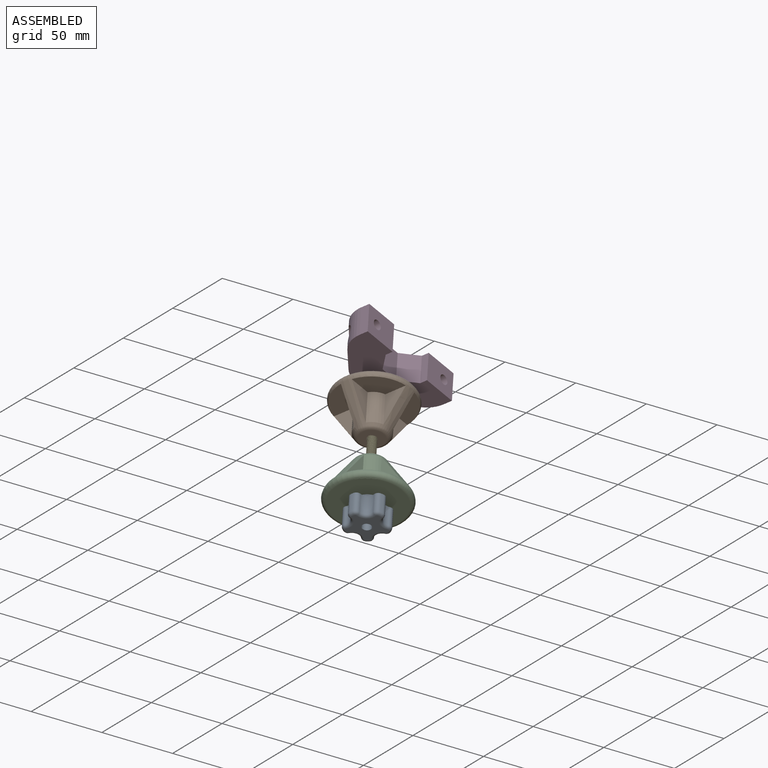
[diagram: assembled view]
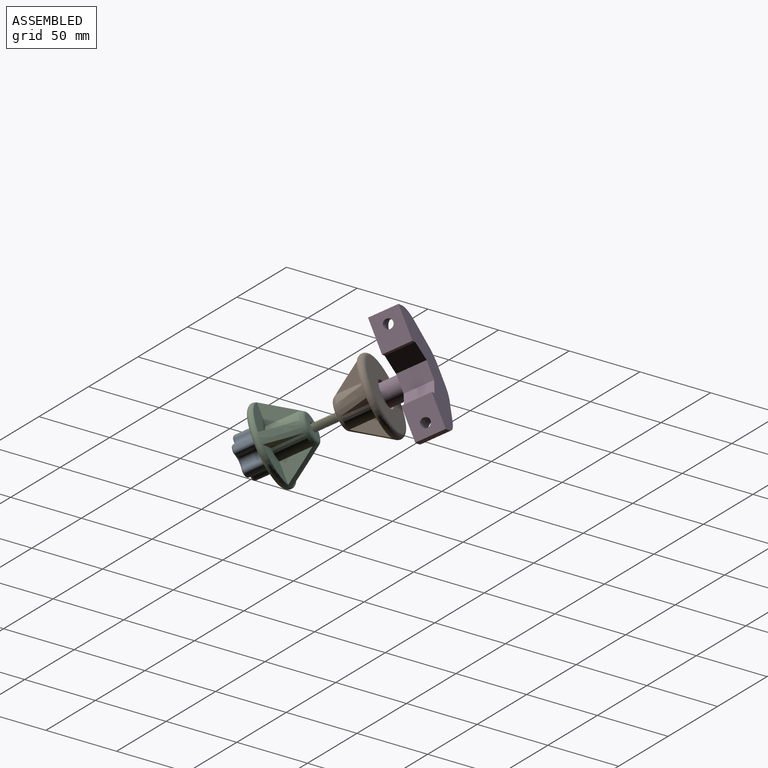
[diagram: assembled view, second angle]
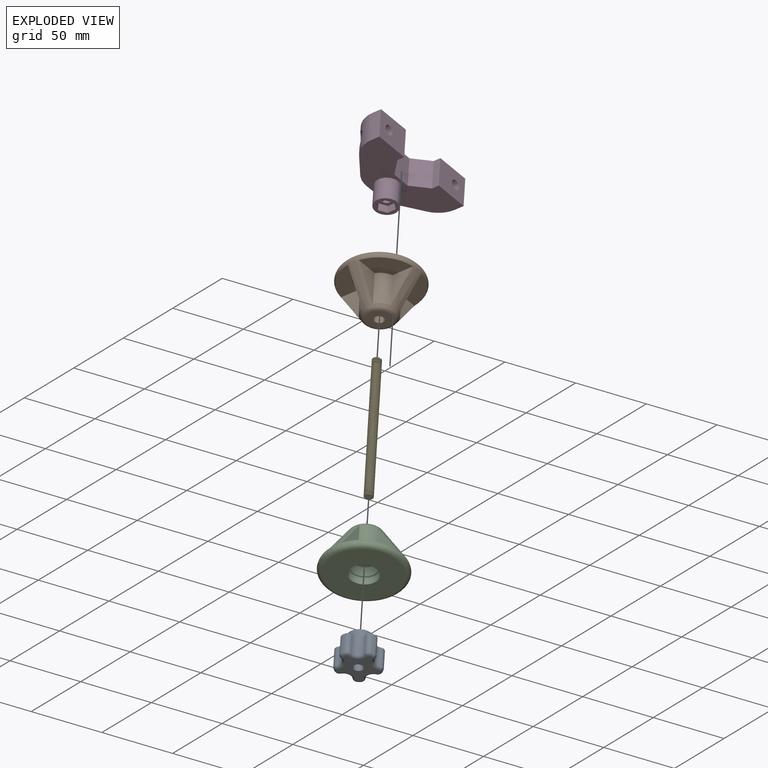
[diagram: exploded view]
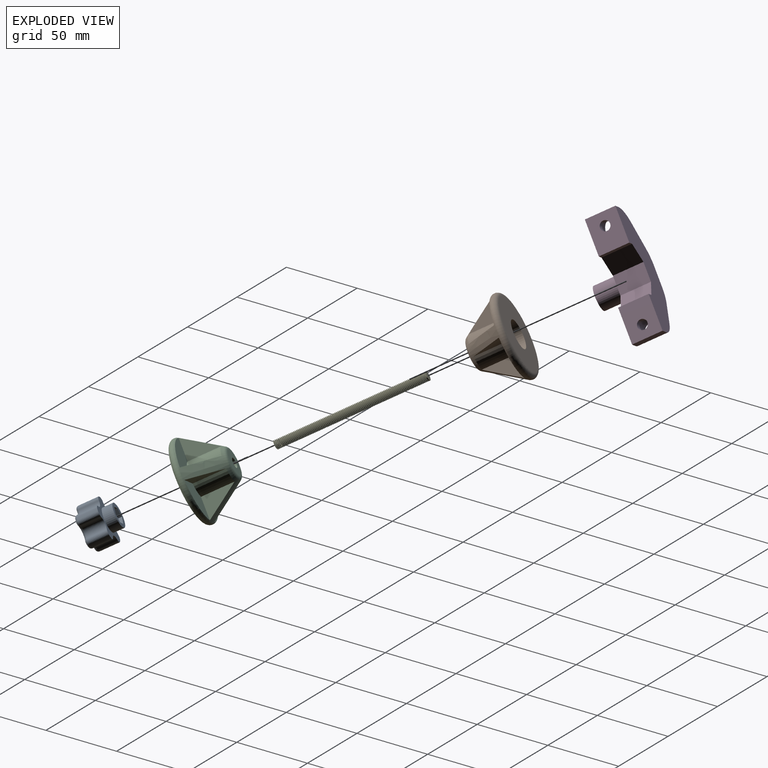
[diagram: exploded view, second angle]
ASSEMBLY  parts=5 mates=4
PART A: 52 faces, bbox 29.3x22x28.2 mm
  f0: plane 16x16mm, normal (0,-1,0), area 114.5mm2, adj f8,f24,f25,f26,f27,f28,f29
  f1: cylinder r=15mm len=13mm, axis (0,1,0), area 26.6mm2, adj f5,f14,f17,f50
  f2: cylinder r=15mm len=13mm, axis (0,1,0), area 26.6mm2, adj f5,f16,f19,f42
  f3: cylinder r=15mm len=13mm, axis (0,1,0), area 26.6mm2, adj f5,f18,f21,f34
  f4: cylinder r=15mm len=13mm, axis (0,1,0), area 26.6mm2, adj f5,f20,f23,f37
  f5: plane 29.28x28.17mm, normal (0,-1,0), area 305.3mm2, adj f1,f2,f3,f4,f7,f8,f9,f10
  f6: plane 25.28x24.17mm, normal (0,1,0), area 286.1mm2, adj f31,f32,f33,f34,f35,f36,f37,f38
  f7: cylinder r=15mm len=13mm, axis (0,1,0), area 26.6mm2, adj f5,f15,f22,f45
  f8: cylinder r=8mm len=16mm, axis (0,1,0), area 351.9mm2, adj f0,f5
  f9: cylinder r=5mm len=13mm, axis (0,1,0), area 119.9mm2, adj f5,f22,f23,f41
  f10: cylinder r=5mm len=13mm, axis (0,1,0), area 119.9mm2, adj f5,f20,f21,f33
  f11: cylinder r=5mm len=13mm, axis (0,1,0), area 119.9mm2, adj f5,f18,f19,f38
  f12: cylinder r=5mm len=13mm, axis (0,1,0), area 119.9mm2, adj f5,f16,f17,f46
  f13: cylinder r=5mm len=13mm, axis (0,1,0), area 119.9mm2, adj f5,f14,f15,f49
  f14: cylinder r=3mm len=13mm, axis (0,-1,0), area 57.8mm2, adj f1,f5,f13,f51
  f15: cylinder r=3mm len=13mm, axis (0,1,0), area 57.8mm2, adj f5,f7,f13,f47
  f16: cylinder r=3mm len=13mm, axis (0,-1,0), area 57.8mm2, adj f2,f5,f12,f44
  f17: cylinder r=3mm len=13mm, axis (0,1,0), area 57.8mm2, adj f1,f5,f12,f48
  f18: cylinder r=3mm len=13mm, axis (0,-1,0), area 57.8mm2, adj f3,f5,f11,f36
  f19: cylinder r=3mm len=13mm, axis (0,1,0), area 57.8mm2, adj f2,f5,f11,f40
  f20: cylinder r=3mm len=13mm, axis (0,-1,0), area 57.8mm2, adj f4,f5,f10,f35
  f21: cylinder r=3mm len=13mm, axis (0,1,0), area 57.8mm2, adj f3,f5,f10,f32
  f22: cylinder r=3mm len=13mm, axis (0,-1,0), area 57.8mm2, adj f5,f7,f9,f43
  f23: cylinder r=3mm len=13mm, axis (0,1,0), area 57.8mm2, adj f4,f5,f9,f39
  f24: plane 5x5mm, normal (0.87,0,-0.5), area 28.9mm2, adj f0,f25,f29,f30
  f25: plane 5x5mm, normal (0.87,0,0.5), area 28.9mm2, adj f0,f24,f26,f30
  f26: plane 5.77x5mm, normal (0,0,1), area 28.9mm2, adj f0,f25,f27,f30
  f27: plane 5x5mm, normal (-0.87,0,0.5), area 28.9mm2, adj f0,f26,f28,f30
  f28: plane 5x5mm, normal (-0.87,0,-0.5), area 28.9mm2, adj f0,f27,f29,f30
  f29: plane 5.77x5mm, normal (0,0,-1), area 28.9mm2, adj f0,f24,f28,f30
  f30: plane 11.55x10mm, normal (0,-1,0), area 55.4mm2, adj f24,f25,f26,f27,f28,f29,f31
  f31: cylinder r=3.15mm len=17mm, axis (0,-1,0), area 336.5mm2, adj f6,f30
  f32: torus R=1mm, axis (0,1,0), area 10.6mm2, adj f6,f21,f33,f34
  f33: torus R=7mm, axis (0,1,0), area 33.2mm2, adj f6,f10,f32,f35
  f34: torus R=13mm, axis (0,1,0), area 6.1mm2, adj f3,f6,f32,f36
  f35: torus R=1mm, axis (0,1,0), area 10.6mm2, adj f6,f20,f33,f37
  f36: torus R=1mm, axis (0,1,0), area 10.6mm2, adj f6,f18,f34,f38
  f37: torus R=13mm, axis (0,1,0), area 6.1mm2, adj f4,f6,f35,f39
  f38: torus R=7mm, axis (0,1,0), area 33.2mm2, adj f6,f11,f36,f40
  f39: torus R=1mm, axis (0,1,0), area 10.6mm2, adj f6,f23,f37,f41
  f40: torus R=1mm, axis (0,1,0), area 10.6mm2, adj f6,f19,f38,f42
  f41: torus R=7mm, axis (0,1,0), area 33.2mm2, adj f6,f9,f39,f43
  f42: torus R=13mm, axis (0,1,0), area 6.1mm2, adj f2,f6,f40,f44
  f43: torus R=1mm, axis (0,1,0), area 10.6mm2, adj f6,f22,f41,f45
  f44: torus R=1mm, axis (0,1,0), area 10.6mm2, adj f6,f16,f42,f46
  f45: torus R=13mm, axis (0,1,0), area 6.1mm2, adj f6,f7,f43,f47
  f46: torus R=7mm, axis (0,1,0), area 33.2mm2, adj f6,f12,f44,f48
  f47: torus R=1mm, axis (0,1,0), area 10.6mm2, adj f6,f15,f45,f49
  f48: torus R=1mm, axis (0,1,0), area 10.6mm2, adj f6,f17,f46,f50
  f49: torus R=7mm, axis (0,1,0), area 33.2mm2, adj f6,f13,f47,f51
  f50: torus R=13mm, axis (0,1,0), area 6.1mm2, adj f1,f6,f48,f51
  f51: torus R=1mm, axis (0,1,0), area 10.6mm2, adj f6,f14,f49,f50
PART B: 26 faces, bbox 59.3x30x59.3 mm
  f0: cone r=10mm half-angle=33.7deg, axis (0,1,0), area 1065.1mm2, adj f8,f9,f10,f11,f12,f13,f14,f15
  f1: cylinder r=8.7mm len=17.4mm, axis (0,1,0), area 356.4mm2, adj f5,f6
  f2: cylinder r=3.3mm len=14.76mm, axis (0,-1,0), area 305.9mm2, adj f4,f5
  f3: plane 48.79x48.79mm, normal (0,1,0), area 1586mm2, adj f7,f24
  f4: plane 16.79x16.79mm, normal (0,-1,0), area 187.2mm2, adj f2,f25
  f5: cone r=0mm half-angle=59deg, axis (0,1,0), area 237.5mm2, adj f1,f2
  f6: cone r=0mm half-angle=59deg, axis (0,1,0), area 53.4mm2, adj f1,f7
  f7: cylinder r=9.5mm len=19mm, axis (0,1,0), area 298.5mm2, adj f3,f6
  f8: plane 22x15.05mm, normal (1,0,0), area 166.7mm2, adj f0,f10,f11
  f9: plane 22x15.05mm, normal (0,0,-1), area 166.7mm2, adj f0,f10,f11
  f10: cylinder r=12mm len=22mm, axis (0,-1,0), area 235.3mm2, adj f0,f8,f9,f11
  f11: plane 22.37x22.37mm, normal (0,-1,0), area 327.1mm2, adj f0,f8,f9,f10
  f12: plane 22x15.05mm, normal (1,0,0), area 166.7mm2, adj f0,f13,f15
  f13: cylinder r=12mm len=22mm, axis (0,-1,0), area 235.3mm2, adj f0,f12,f14,f15
  f14: plane 22x15.05mm, normal (0,0,1), area 166.7mm2, adj f0,f13,f15
  f15: plane 22.37x22.37mm, normal (0,-1,0), area 327.1mm2, adj f0,f12,f13,f14
  f16: plane 22x15.05mm, normal (0,0,1), area 166.7mm2, adj f0,f17,f19
  f17: cylinder r=12mm len=22mm, axis (0,-1,0), area 235.3mm2, adj f0,f16,f18,f19
  f18: plane 22x15.05mm, normal (-1,0,0), area 166.7mm2, adj f0,f17,f19
  f19: plane 22.37x22.37mm, normal (0,-1,0), area 327.1mm2, adj f0,f16,f17,f18
  f20: plane 22x15.05mm, normal (-1,0,0), area 166.7mm2, adj f0,f21,f23
  f21: cylinder r=12mm len=22mm, axis (0,-1,0), area 235.3mm2, adj f0,f20,f22,f23
  f22: plane 22x15.05mm, normal (0,0,-1), area 166.7mm2, adj f0,f21,f23
  f23: plane 22.37x22.37mm, normal (0,-1,0), area 327.1mm2, adj f0,f20,f21,f22
  f24: torus R=24.39mm, axis (0,-1,0), area 1080.6mm2, adj f0,f3
  f25: torus R=8.39mm, axis (0,1,0), area 180.7mm2, adj f0,f4
PART C: same geometry as B
PART D: 35 faces, bbox 35x80x35 mm
  f0: plane 16x16mm, normal (1,0,0), area 107.4mm2, adj f13,f14,f15,f16,f17,f18,f19
  f1: plane 20x15.29mm, normal (0,-0.58,0.81), area 286.8mm2, adj f11,f12,f26,f29,f32
  f2: plane 20x6.05mm, normal (0,-1,0), area 120.9mm2, adj f3,f11,f12,f29
  f3: plane 23.62x20mm, normal (0,0,-1), area 438.3mm2, adj f2,f4,f11,f12,f27
  f4: plane 20x5mm, normal (0,1,0), area 100mm2, adj f3,f11,f12,f33
  f5: plane 20x12.75mm, normal (0,0,-1), area 255mm2, adj f11,f12,f33,f34
  f6: plane 20x5mm, normal (0,-1,0), area 100mm2, adj f7,f11,f12,f34
  f7: plane 23.62x20mm, normal (0,0,-1), area 438.3mm2, adj f6,f8,f11,f12,f23
  f8: plane 20x6.05mm, normal (0,1,0), area 120.9mm2, adj f7,f11,f12,f30
  f9: plane 20x15.29mm, normal (0,0.58,0.81), area 286.8mm2, adj f11,f12,f25,f30,f31
  f10: plane 20x13.43mm, normal (0,0,1), area 268.6mm2, adj f11,f12,f31,f32
  f11: plane 80x35mm, normal (-1,0,0), area 1834.6mm2, adj f1,f2,f3,f4,f5,f6,f7,f8
  f12: plane 80x35mm, normal (1,0,0), area 1633.5mm2, adj f1,f2,f3,f4,f5,f6,f7,f8
  f13: cylinder r=8mm len=16mm, axis (-1,0,0), area 754mm2, adj f0,f12
  f14: plane 5.18x5mm, normal (0,0.51,-0.86), area 30mm2, adj f0,f15,f19,f20
  f15: plane 6x5mm, normal (0,1,0.01), area 30mm2, adj f0,f14,f16,f20
  f16: plane 5.22x5mm, normal (0,0.49,0.87), area 30mm2, adj f0,f15,f17,f20
  f17: plane 5.18x5mm, normal (0,-0.51,0.86), area 30mm2, adj f0,f16,f18,f20
  f18: plane 6x5mm, normal (0,-1,-0.01), area 30mm2, adj f0,f17,f19,f20
  f19: plane 5.22x5mm, normal (0,-0.49,-0.87), area 30mm2, adj f0,f14,f18,f20
  f20: plane 12.01x10.44mm, normal (1,0,0), area 62.5mm2, adj f14,f15,f16,f17,f18,f19,f22
  f21: cone r=0mm half-angle=59deg, axis (1,0,0), area 36.4mm2, adj f22
  f22: cylinder r=3.15mm len=25mm, axis (1,0,0), area 494.8mm2, adj f20,f21
  f23: cylinder r=3.3mm len=6.6mm, axis (0,0,1), area 100.4mm2, adj f7,f24
  f24: plane 12.5x12.5mm, normal (0,0,1), area 88.5mm2, adj f23,f25
  f25: cylinder r=6.25mm len=20.96mm, axis (0,0,1), area 628.5mm2, adj f9,f24,f30
  f26: cylinder r=6.25mm len=20.96mm, axis (0,0,1), area 628.5mm2, adj f1,f28,f29
  f27: cylinder r=3.3mm len=6.6mm, axis (0,0,1), area 100.4mm2, adj f3,f28
  f28: plane 12.5x12.5mm, normal (0,0,1), area 88.5mm2, adj f26,f27
  f29: cylinder r=18mm len=20mm, axis (-1,0,0), area 268.5mm2, adj f1,f2,f11,f12,f26
  f30: cylinder r=18mm len=20mm, axis (-1,0,0), area 268.5mm2, adj f8,f9,f11,f12,f25
  f31: cylinder r=18mm len=20mm, axis (1,0,0), area 223.9mm2, adj f9,f10,f11,f12
  f32: cylinder r=18mm len=20mm, axis (-1,0,0), area 223.9mm2, adj f1,f10,f11,f12
  f33: plane 20x10mm, normal (0,0.71,-0.71), area 282.8mm2, adj f4,f5,f11,f12
  f34: plane 20x10mm, normal (0,-0.71,-0.71), area 282.8mm2, adj f5,f6,f11,f12
PART E: 7 faces, bbox 6.6x101.2x7.5 mm
  f0: cylinder r=3mm len=100mm, axis (0,-1,0), area -1283.7mm2, adj f1,f2,f3,f4,f5,f6
  f1: plane 6.15x5.92mm, normal (0,1,0), area 22.9mm2, adj f0,f3,f4,f5
  f2: plane 6.07x6.07mm, normal (0,-1,0), area 28mm2, adj f0,f5,f6
  f3: plane 0.22x0.13mm, normal (0,0,1), area 0mm2, adj f0,f1,f5
  f4: bspline ~100.27x6.93mm, area 1426.1mm2, adj f0,f1,f5,f6
  f5: bspline ~100.43x6.93mm, area 1423.8mm2, adj f0,f1,f2,f3,f4,f6
  f6: plane 0.75x0.74mm, normal (0,0,-1), area 0.3mm2, adj f0,f2,f4,f5
PLACE A rot(axis=(-0.95,-0.19,-0.24),144.9deg) t=(-8.13,-42.23,34.74)mm
PLACE B rot(axis=(0.72,-0.54,0.43),49.6deg) t=(-52.36,28.79,78.59)mm
PLACE C rot(axis=(0.23,0.31,-0.92),159deg) t=(-15.94,-29.7,42.48)mm
PLACE D rot(axis=(0.84,-0.34,-0.42),147.4deg) t=(-37.51,43.23,97.19)mm
PLACE E rot(axis=(-0.95,-0.19,-0.24),144.9deg) t=(-42.19,12.59,68.18)mm
MATE slider B.f0 <-> E.f1  axis (-0.47,0.75,0.46) through (-45.23,17.33,71.51)mm
MATE slider A.f1 <-> E.f1  axis (-0.47,0.75,0.46) through (-18.43,-25.69,44.96)mm
MATE fastened E.f0 <-> D.f13  axis (-0.47,0.75,0.46) through (-65.29,49.67,91.07)mm
MATE slider C.f0 <-> E.f1  axis (-0.47,0.75,0.46) through (-29.99,-7.14,56.41)mm
